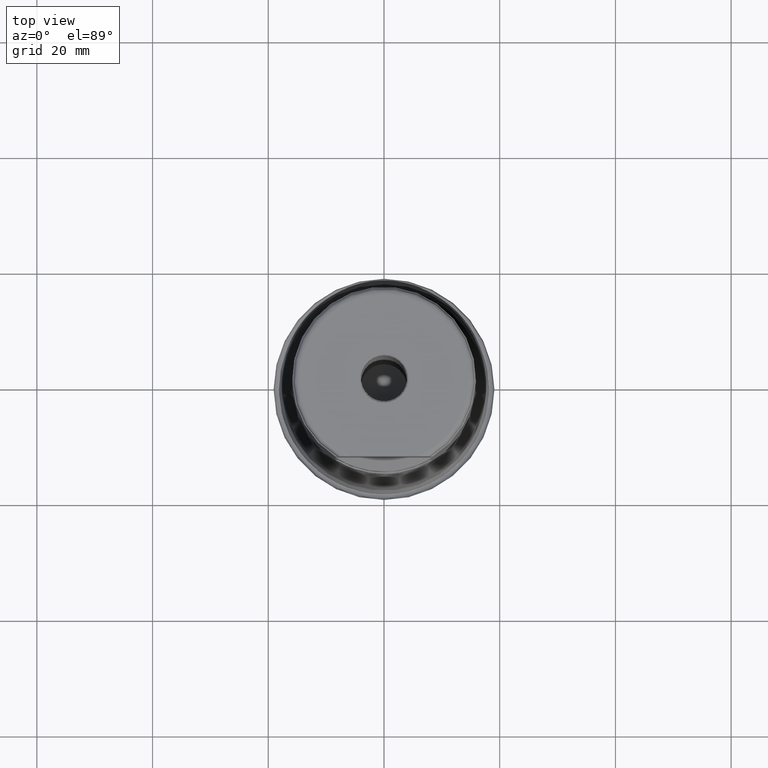
[diagram: clean part render]
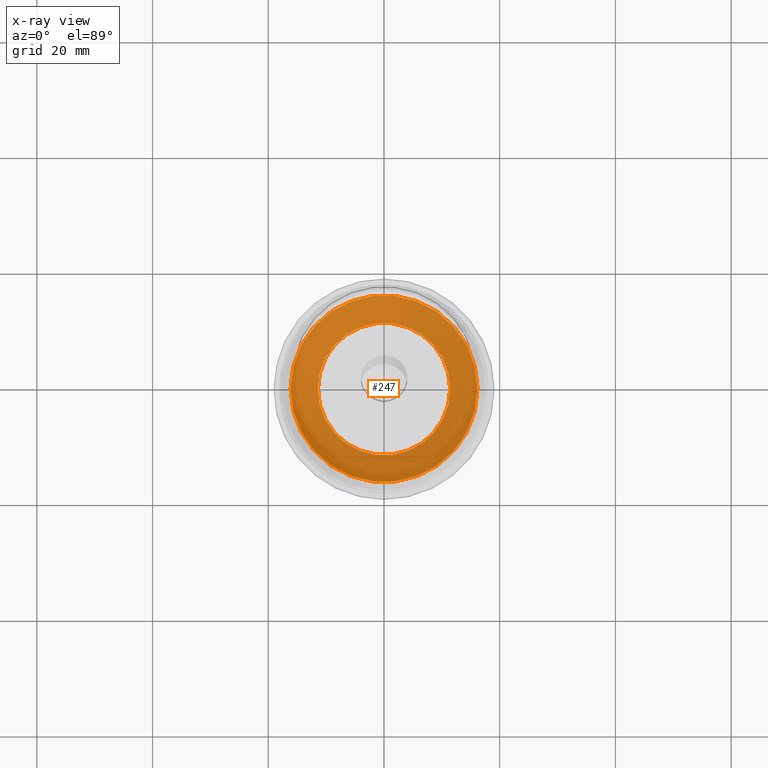
[diagram: x-ray — body ghosted, one internal face saturated and labeled with its STEP entity id]
A machine part, top view, then the same camera in x-ray: the body is ghosted and one INTERNAL B-rep face — a face not visible from any outside direction — is saturated and labeled: STEP entity #247.
In plain terms, the highlighted face is a SurfaceOfRevolution surface.
Its self-contained STEP definition (entity closure, byte-faithful):
#124=SURFACE_OF_REVOLUTION('',#881,#147);
#147=AXIS1_PLACEMENT('',#1862,#1171);
#247=ADVANCED_FACE('',(#372,#373),#124,.F.);
#372=FACE_BOUND('',#476,.T.);
#373=FACE_BOUND('',#477,.T.);
#476=EDGE_LOOP('',(#626));
#477=EDGE_LOOP('',(#627));
#626=ORIENTED_EDGE('',*,*,#775,.T.);
#627=ORIENTED_EDGE('',*,*,#776,.F.);
#700=VERTEX_POINT('',#1846);
#701=VERTEX_POINT('',#1855);
#775=EDGE_CURVE('',#700,#700,#824,.T.);
#776=EDGE_CURVE('',#701,#701,#825,.T.);
#824=CIRCLE('',#969,16.1492790439089);
#825=CIRCLE('',#970,11.4351125280209);
#881=B_SPLINE_CURVE_WITH_KNOTS('',5,(#1856,#1857,#1858,#1859,#1860,#1861),
 .UNSPECIFIED.,.F.,.F.,(6,6),(0.,1.),.UNSPECIFIED.);
#969=AXIS2_PLACEMENT_3D('',#1845,#1166,#1167);
#970=AXIS2_PLACEMENT_3D('',#1854,#1169,#1170);
#1166=DIRECTION('',(0.,0.,-1.));
#1167=DIRECTION('',(-1.,0.,0.));
#1169=DIRECTION('',(0.,0.,-1.));
#1170=DIRECTION('',(-1.,0.,0.));
#1171=DIRECTION('',(0.,0.,-1.));
#1845=CARTESIAN_POINT('',(0.,0.,9.65201260196362));
#1846=CARTESIAN_POINT('',(-16.1492790439089,0.,9.65201260196362));
#1854=CARTESIAN_POINT('',(0.,0.,6.98547070689383));
#1855=CARTESIAN_POINT('',(-11.4351125280209,0.,6.98547070689383));
#1856=CARTESIAN_POINT('',(11.4351125618145,0.,6.98547065066862));
#1857=CARTESIAN_POINT('',(12.3636408789494,-1.17274353534774E-32,7.54355307677599));
#1858=CARTESIAN_POINT('',(13.2996117417666,4.22593292989726E-31,8.08925517147504));
#1859=CARTESIAN_POINT('',(14.242690251585,2.60208521396521E-15,8.62263078673087));
#1860=CARTESIAN_POINT('',(15.1926479814404,2.60208521396521E-15,9.14360110541301));
#1861=CARTESIAN_POINT('',(16.1492790439089,2.60208521396521E-15,9.65201260196362));
#1862=CARTESIAN_POINT('',(0.,0.,0.));